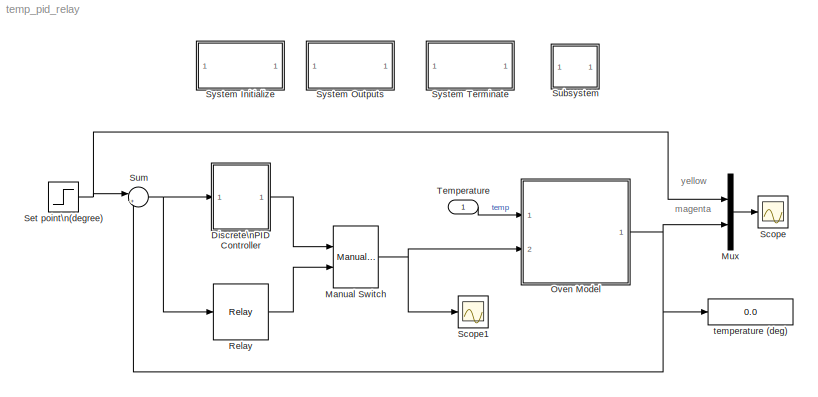
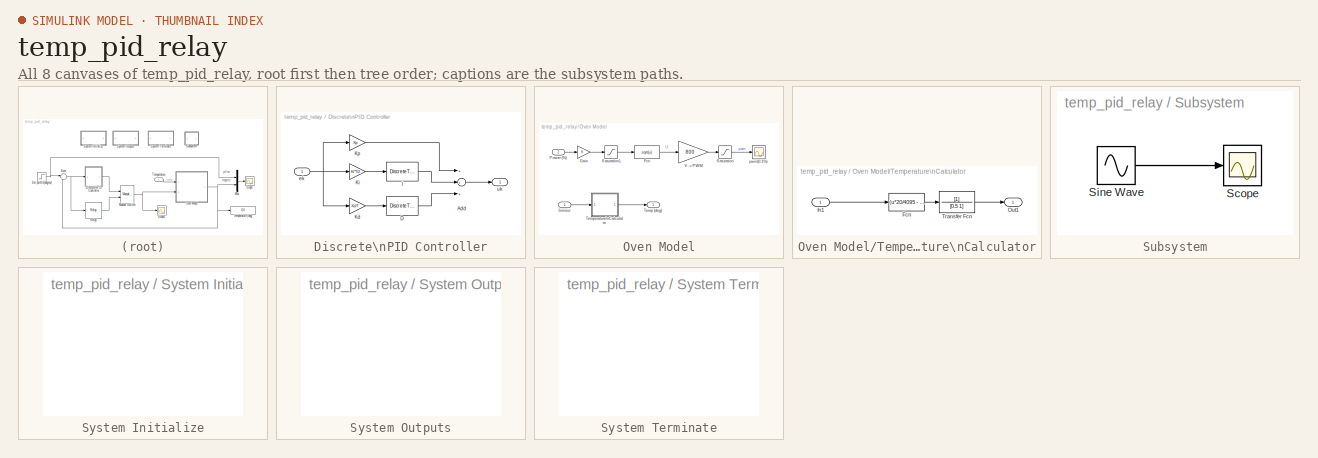
[diagram: thumbnail index - all 8 canvases of the model, root first then tree order]
MODEL temp_pid_relay
KIND model
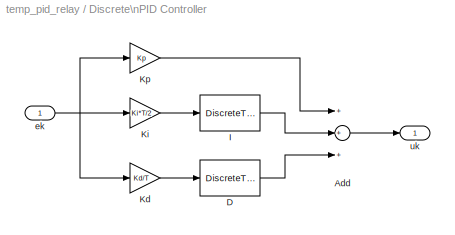
BLOCK [SubSystem] Discrete\nPID Controller
  FunctionWithSeparateData = off
  MaskCallbackString = |||
  MaskEnableString = on,on,on,on
  MaskHideContents = off
  MaskIconFrame = on
  MaskIconOpaque = on
  MaskIconRotate = none
  MaskIconUnits = autoscale
  MaskPortRotate = default
  MaskPromptString = Kp|Ki|Kd|T
  MaskStyleString = edit,edit,edit,edit
  MaskToolTipString = on,on,on,on
  MaskTunableValueString = on,on,on,on
  MaskValueString = Kp|Ki|Kd|1
  MaskVariables = Kp=@1;Ki=@2;Kd=@3;T=@4;
  MaskVisibilityString = on,on,on,on
  MinAlgLoopOccurrences = off
  Opaque = off
  Ports = [1, 1]
  PropExecContextOutsideSubsystem = off
  RTWSystemCode = Auto
  RequestExecContextInheritance = off
  SID = 2
BLOCK [Sum] Discrete\nPID Controller/Add
  InputSameDT = off
  Inputs = +++
  OutDataType = sfix(16)
  OutDataTypeMode = Inherit via internal rule
  OutDataTypeStr = Inherit: Inherit via internal rule
  OutScaling = 2^-10
  Ports = [3, 1]
  SID = 4
  SaturateOnIntegerOverflow = off
BLOCK [DiscreteTransferFcn] Discrete\nPID Controller/D
  Denominator = [1 0]
  Numerator = [1 -1]
  Ports = [1, 1]
  SID = 5
  SampleTime = T
BLOCK [DiscreteTransferFcn] Discrete\nPID Controller/I
  Denominator = [1 -1]
  Numerator = [1 1]
  Ports = [1, 1]
  SID = 6
  SampleTime = T
BLOCK [Gain] Discrete\nPID Controller/Kd
  Gain = Kd/T
  OutDataType = sfix(16)
  OutDataTypeMode = Inherit via internal rule
  OutDataTypeStr = Inherit: Inherit via internal rule
  OutScaling = 2^0
  ParamDataTypeStr = Inherit: Inherit via internal rule
  ParameterDataType = sfix(16)
  ParameterDataTypeMode = Inherit via internal rule
  ParameterScaling = 2^0
  SID = 7
  SaturateOnIntegerOverflow = off
BLOCK [Gain] Discrete\nPID Controller/Ki
  Gain = Ki*T/2
  OutDataType = sfix(16)
  OutDataTypeMode = Inherit via internal rule
  OutDataTypeStr = Inherit: Inherit via internal rule
  OutScaling = 2^0
  ParamDataTypeStr = Inherit: Inherit via internal rule
  ParameterDataType = sfix(16)
  ParameterDataTypeMode = Inherit via internal rule
  ParameterScaling = 2^0
  SID = 8
  SaturateOnIntegerOverflow = off
BLOCK [Gain] Discrete\nPID Controller/Kp
  Gain = Kp
  OutDataType = sfix(16)
  OutDataTypeMode = Inherit via internal rule
  OutDataTypeStr = Inherit: Inherit via internal rule
  OutScaling = 2^0
  ParamDataTypeStr = Inherit: Inherit via internal rule
  ParameterDataType = sfix(16)
  ParameterDataTypeMode = Inherit via internal rule
  ParameterScaling = 2^0
  SID = 9
  SaturateOnIntegerOverflow = off
BLOCK [Inport] Discrete\nPID Controller/ek
  IconDisplay = Port number
  OutDataType = sfix(16)
  OutScaling = 2^0
  SID = 3
BLOCK [Outport] Discrete\nPID Controller/uk
  IconDisplay = Port number
  OutDataType = sfix(16)
  OutScaling = 2^0
  SID = 10
BLOCK [Reference] Manual Switch  REF=simulink/Signal\nRouting/Manual Switch
  FunctionWithSeparateData = off
  Ports = [2, 1]
  RTWMemSecDataConstants = Inherit from model
  RTWMemSecDataInternal = Inherit from model
  RTWMemSecDataParameters = Inherit from model
  RTWMemSecFuncExecute = Inherit from model
  RTWMemSecFuncInitTerm = Inherit from model
  SID = 11
  ShowPortLabels = FromPortIcon
  SourceBlock = simulink/Signal\nRouting/Manual Switch
  SourceType = Manual Switch
  SystemSampleTime = -1
  action = 0
  sw = 0
  varsize = off
BLOCK [Mux] Mux
  DisplayOption = bar
  Inputs = 2
  Ports = [2, 1]
  SID = 12
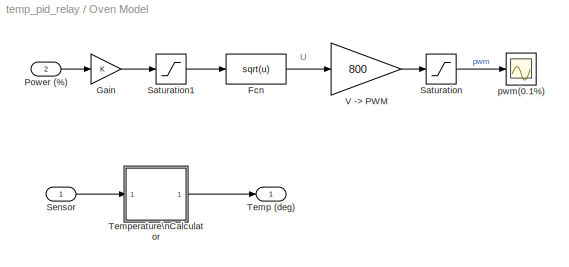
BLOCK [SubSystem] Oven Model
  FunctionWithSeparateData = off
  MaskHideContents = off
  MinAlgLoopOccurrences = off
  Opaque = off
  Ports = [2, 1]
  PropExecContextOutsideSubsystem = off
  RTWSystemCode = Auto
  RequestExecContextInheritance = off
  SID = 13
BLOCK [Fcn] Oven Model/Fcn
  Expr = sqrt(u)
  SID = 16
BLOCK [Gain] Oven Model/Gain
  OutDataType = sfix(16)
  OutDataTypeMode = Inherit via internal rule
  OutDataTypeStr = Inherit: Inherit via internal rule
  OutScaling = 2^0
  ParamDataTypeStr = Inherit: Inherit via internal rule
  ParameterDataType = sfix(16)
  ParameterDataTypeMode = Inherit via internal rule
  ParameterScaling = 2^0
  SID = 17
  SaturateOnIntegerOverflow = off
BLOCK [Inport] Oven Model/Power (%)
  IconDisplay = Port number
  OutDataType = sfix(16)
  OutScaling = 2^0
  Port = 2
  SID = 15
BLOCK [Saturate] Oven Model/Saturation
  LowerLimit = 0.5
  SID = 18
  UpperLimit = 800
BLOCK [Saturate] Oven Model/Saturation1
  LowerLimit = 0
  SID = 19
  UpperLimit = 1
BLOCK [Inport] Oven Model/Sensor
  IconDisplay = Port number
  OutDataType = sfix(16)
  OutScaling = 2^0
  SID = 14
BLOCK [Outport] Oven Model/Temp (deg)
  IconDisplay = Port number
  OutDataType = sfix(16)
  OutScaling = 2^0
  SID = 27
BLOCK [SubSystem] Oven Model/Temperature\nCalculator
  FunctionWithSeparateData = off
  MaskHideContents = off
  MinAlgLoopOccurrences = off
  Opaque = off
  Ports = [1, 1]
  PropExecContextOutsideSubsystem = off
  RTWSystemCode = Auto
  RequestExecContextInheritance = off
  SID = 20
BLOCK [Fcn] Oven Model/Temperature\nCalculator/Fcn
  Expr = (u*20/4095 - 4)*200/16
  SID = 22
BLOCK [Inport] Oven Model/Temperature\nCalculator/In1
  IconDisplay = Port number
  OutDataType = sfix(16)
  OutScaling = 2^0
  SID = 21
BLOCK [Outport] Oven Model/Temperature\nCalculator/Out1
  IconDisplay = Port number
  OutDataType = sfix(16)
  OutScaling = 2^0
  SID = 24
BLOCK [TransferFcn] Oven Model/Temperature\nCalculator/Transfer Fcn
  Denominator = [0.5 1]
  SID = 23
BLOCK [Gain] Oven Model/V -> PWM
  Gain = 800
  OutDataType = sfix(16)
  OutDataTypeMode = Inherit via internal rule
  OutDataTypeStr = Inherit: Inherit via internal rule
  OutScaling = 2^0
  ParameterDataType = sfix(16)
  ParameterScaling = 2^0
  SID = 25
  SaturateOnIntegerOverflow = off
BLOCK [Scope] Oven Model/pwm(0.1%)
  DataFormat = Array
  Floating = off
  LimitDataPoints = off
  NumInputPorts = 1
  Ports = [1]
  SID = 26
  SampleTime = 0
  SaveName = ScopeData2
  SaveToWorkspace = on
  YMax = 1000
  YMin = 0
BLOCK [Relay] Relay
  OffSwitchValue = -0.1
  OnOutputValue = 0.3
  OnSwitchValue = 0.1
  OutDataType = sfix(16)
  OutScaling = 2^0
  SID = 28
BLOCK [Scope] Scope
  DataFormat = StructureWithTime
  Floating = off
  LimitDataPoints = off
  NumInputPorts = 1
  Ports = [1]
  SID = 29
  SampleTime = 0
  SaveToWorkspace = on
  YMax = 72.2
  YMin = 70
BLOCK [Scope] Scope1
  DataFormat = StructureWithTime
  Floating = off
  LimitDataPoints = off
  NumInputPorts = 1
  Ports = [1]
  SID = 30
  SampleTime = 0
  SaveName = ScopeData1
  SaveToWorkspace = on
  YMax = 0.525
  YMin = 0.475
BLOCK [Step] Set point\n(degree)
  After = 70
  SID = 31
  SampleTime = 0
  Time = 0
BLOCK [SubSystem] Subsystem
  FunctionWithSeparateData = off
  MaskHideContents = off
  MinAlgLoopOccurrences = off
  Opaque = off
  Ports = []
  PropExecContextOutsideSubsystem = off
  RTWSystemCode = Auto
  RequestExecContextInheritance = off
  SID = 37
  TreatAsAtomicUnit = on
BLOCK [Scope] Subsystem/Scope
  DataFormat = StructureWithTime
  Floating = off
  NumInputPorts = 1
  Ports = [1]
  SID = 38
  SampleTime = 0
  SaveName = ScopeData1
BLOCK [Sin] Subsystem/Sine Wave
  Amplitude = 1
  Bias = 0
  Frequency = 1
  Offset = 0
  Phase = 0
  Ports = [0, 1]
  SID = 39
  SampleTime = 0
  Samples = 10
BLOCK [Sum] Sum
  IconShape = round
  InputSameDT = off
  Inputs = |+-
  OutDataType = sfix(16)
  OutDataTypeMode = Inherit via internal rule
  OutDataTypeStr = Inherit: Inherit via internal rule
  OutScaling = 2^0
  Ports = [2, 1]
  SID = 32
  SaturateOnIntegerOverflow = off
BLOCK [SubSystem] System Initialize
  CopyFcn = cccopyfcn(gcb)
  FunctionWithSeparateData = off
  MaskDescription = Add code to a systems Initialize function
  MaskDisplay = disp('System\\nInitialize');
  MaskEnableString = off
  MaskHelp = This block contains text fields to insert custom user code sections at the declaration, execution and exit sections of the systems initialize function.  By placing this block inside a subsytem, the custom user code will appear in that subsystems function.
  MaskHideContents = off
  MaskIconFrame = on
  MaskIconOpaque = on
  MaskIconRotate = none
  MaskIconUnits = autoscale
  MaskPortRotate = default
  MaskPromptString = Mask Parameter 1:
  MaskStyleString = edit
  MaskToolTipString = on
  MaskTunableValueString = on
  MaskType = System Initialize
  MaskValueString = 0
  MaskVariables = ShowInLibBrowser=@1;
  MaskVisibilityString = off
  MinAlgLoopOccurrences = off
  Opaque = off
  OpenFcn = ccopenfcn('System Initialize Function')
  Ports = []
  PropExecContextOutsideSubsystem = off
  RTWSystemCode = Auto
  RequestExecContextInheritance = off
  SID = 33
BLOCK [SubSystem] System Outputs
  CopyFcn = cccopyfcn(gcb)
  FunctionWithSeparateData = off
  MaskDescription = Add code to a systems Outputs function
  MaskDisplay = disp('System\\nOutputs');
  MaskEnableString = off
  MaskHelp = This block contains text fields to insert custom user code sections at the declaration, execution and exit sections of the systems outputs function.  By placing this block inside a subsytem, the custom user code will appear in that subsystems function.
  MaskHideContents = off
  MaskIconFrame = on
  MaskIconOpaque = on
  MaskIconRotate = none
  MaskIconUnits = autoscale
  MaskPortRotate = default
  MaskPromptString = Mask Parameter 1:
  MaskStyleString = edit
  MaskToolTipString = on
  MaskTunableValueString = on
  MaskType = System Outputs
  MaskValueString = 0
  MaskVariables = ShowInLibBrowser=@1;
  MaskVisibilityString = off
  MinAlgLoopOccurrences = off
  Opaque = off
  OpenFcn = ccopenfcn('System Outputs Function')
  Ports = []
  PropExecContextOutsideSubsystem = off
  RTWSystemCode = Auto
  RequestExecContextInheritance = off
  SID = 34
BLOCK [SubSystem] System Terminate
  CopyFcn = cccopyfcn(gcb)
  FunctionWithSeparateData = off
  MaskDescription = Add code to a systems Terminate function
  MaskDisplay = disp('System\\nTerminate');
  MaskEnableString = off
  MaskHelp = This block contains text fields to insert custom user code sections at the declaration, execution and exit sections of the systems terminate function.  By placing this block inside a subsytem, the custom user code will appear in that subsystems function.
  MaskHideContents = off
  MaskIconFrame = on
  MaskIconOpaque = on
  MaskIconRotate = none
  MaskIconUnits = autoscale
  MaskPortRotate = default
  MaskPromptString = Mask Parameter 1:
  MaskStyleString = edit
  MaskToolTipString = on
  MaskTunableValueString = on
  MaskType = System Terminate
  MaskValueString = 0
  MaskVariables = ShowInLibBrowser=@1;
  MaskVisibilityString = off
  MinAlgLoopOccurrences = off
  Opaque = off
  OpenFcn = ccopenfcn('System Terminate Function')
  Ports = []
  PropExecContextOutsideSubsystem = off
  RTWSystemCode = Auto
  RequestExecContextInheritance = off
  SID = 35
BLOCK [Inport] Temperature
  IconDisplay = Port number
  OutDataType = sfix(16)
  OutScaling = 2^0
  SID = 1
BLOCK [Display] temperature (deg)
  Decimation = 1
  Lockdown = off
  Ports = [1]
  SID = 36
ANNOTATION (root): magenta
ANNOTATION (root): yellow
ANNOTATION Oven Model: U
LINE Discrete\nPID Controller/Add:1 -> Discrete\nPID Controller/uk:1
LINE Discrete\nPID Controller/D:1 -> Discrete\nPID Controller/Add:3
LINE Discrete\nPID Controller/I:1 -> Discrete\nPID Controller/Add:2
LINE Discrete\nPID Controller/Kd:1 -> Discrete\nPID Controller/D:1
LINE Discrete\nPID Controller/Ki:1 -> Discrete\nPID Controller/I:1
LINE Discrete\nPID Controller/Kp:1 -> Discrete\nPID Controller/Add:1
NET Discrete\nPID Controller/ek:1 -> Discrete\nPID Controller/Kd:1, Discrete\nPID Controller/Ki:1, Discrete\nPID Controller/Kp:1
LINE Discrete\nPID Controller:1 -> Manual Switch:1
NET Manual Switch:1 -> Oven Model:2, Scope1:1
LINE Mux:1 -> Scope:1
LINE Oven Model/Fcn:1 -> Oven Model/V -> PWM:1
LINE Oven Model/Gain:1 -> Oven Model/Saturation1:1
LINE Oven Model/Power (%):1 -> Oven Model/Gain:1
LINE Oven Model/Saturation1:1 -> Oven Model/Fcn:1
LINE Oven Model/Saturation:1 -> Oven Model/pwm(0.1%):1
LINE Oven Model/Sensor:1 -> Oven Model/Temperature\nCalculator:1
LINE Oven Model/Temperature\nCalculator/Fcn:1 -> Oven Model/Temperature\nCalculator/Transfer Fcn:1
LINE Oven Model/Temperature\nCalculator/In1:1 -> Oven Model/Temperature\nCalculator/Fcn:1
LINE Oven Model/Temperature\nCalculator/Transfer Fcn:1 -> Oven Model/Temperature\nCalculator/Out1:1
LINE Oven Model/Temperature\nCalculator:1 -> Oven Model/Temp (deg):1
LINE Oven Model/V -> PWM:1 -> Oven Model/Saturation:1
NET Oven Model:1 -> Mux:2, Sum:2, temperature (deg):1
LINE Relay:1 -> Manual Switch:2
NET Set point\n(degree):1 -> Mux:1, Sum:1
LINE Subsystem/Sine Wave:1 -> Subsystem/Scope:1
NET Sum:1 -> Discrete\nPID Controller:1, Relay:1
LINE Temperature:1 -> Oven Model:1
note: NET lines group one-source signal fan-out (src -> all destinations, sorted); 1:1 wires keep LINE
